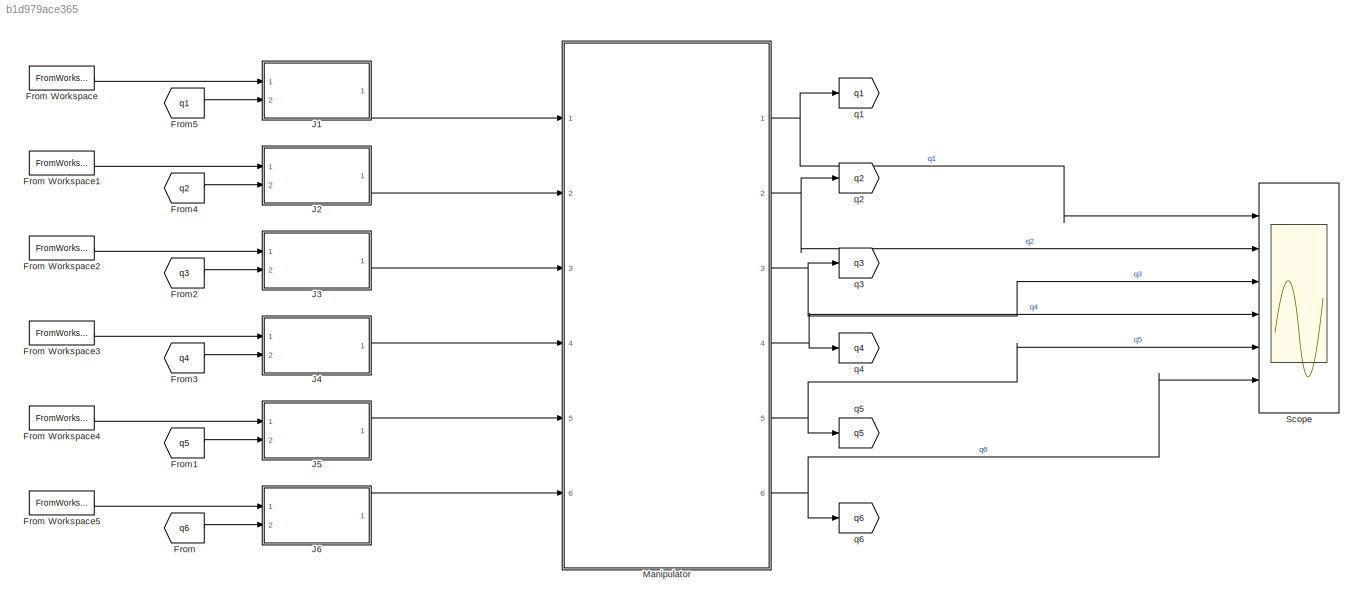
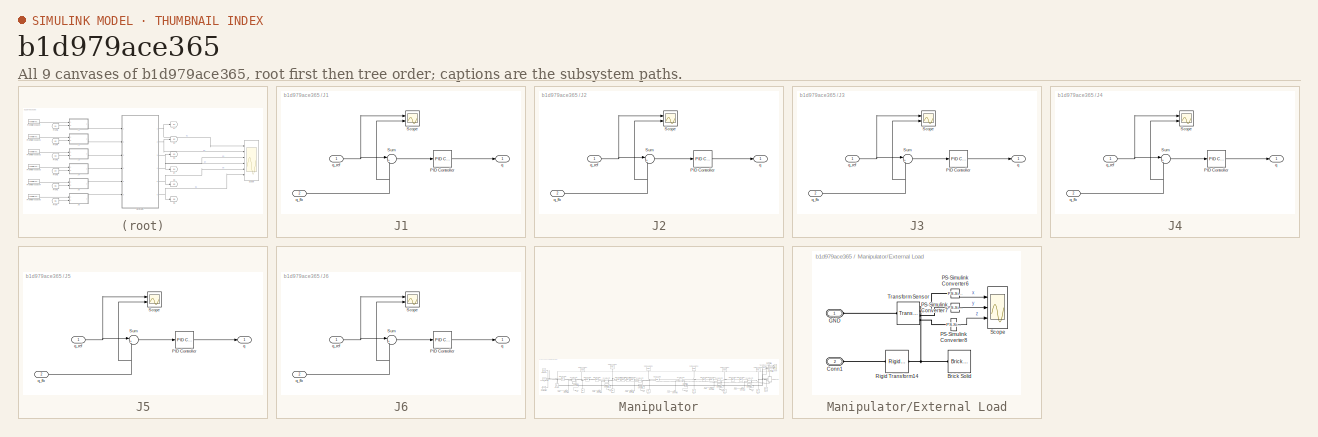
[diagram: thumbnail index - all 9 canvases of the model, root first then tree order]
MODEL slx_b1d979ace365
KIND model
CONFIG AbsTol = auto
CONFIG EnableMultiTasking = off
CONFIG FixedStep = 0.001
CONFIG MaxStep = auto
CONFIG MinStep = auto
CONFIG RelTol = 1e-3
CONFIG SampleTimeConstraint = Unconstrained
CONFIG SolverName = VariableStepAuto
CONFIG StartTime = 0.0
CONFIG StopTime = 5
BLOCK [From] From
  GotoTag = q6
BLOCK [FromWorkspace] From Workspace
  VariableName = q1dsim
BLOCK [FromWorkspace] From Workspace1
  VariableName = q2dsim
BLOCK [FromWorkspace] From Workspace2
  VariableName = q3dsim
BLOCK [FromWorkspace] From Workspace3
  VariableName = q4dsim
BLOCK [FromWorkspace] From Workspace4
  VariableName = q5dsim
BLOCK [FromWorkspace] From Workspace5
  VariableName = q6dsim
BLOCK [From] From1
  GotoTag = q5
BLOCK [From] From2
  GotoTag = q3
BLOCK [From] From3
  GotoTag = q4
BLOCK [From] From4
  GotoTag = q2
BLOCK [From] From5
  GotoTag = q1
BLOCK [SubSystem] J1
  Ports = [2, 1]
  RequestExecContextInheritance = off
BLOCK [Reference] J1/PID Controller  REF=slpidlib/PID Controller
  Ports = [1, 1]
  SourceBlock = slpidlib/PID Controller
  SourceProductBaseCode = SL
  SourceType = PID 1dof
BLOCK [Scope] J1/Scope
  Floating = off
  NumInputPorts = 2
  Ports = [2]
  ScopeSpecificationString = Simulink.scopes.TimeScopeBlockCfg('CurrentConfiguration', extmgr.ConfigurationSet(extmgr.Configuration('Core','General UI',true),extmgr.Configuration('Core','Source UI',true),extmgr.Configuration('Sources','WiredSimulink',true),extmgr.Configuration('Visuals','Time Domain',true,'SerializedDisplays',{struct('MinYLimReal','1.04209','MaxYLimReal','1.0495','YLabelReal','','MinYLimMag','1.04209','MaxYLi...<+1425ch>
BLOCK [Sum] J1/Sum
  Inputs = |+-
  Ports = [2, 1]
BLOCK [Outport] J1/q
BLOCK [Inport] J1/q_fb
  Port = 2
BLOCK [Inport] J1/q_ref
BLOCK [SubSystem] J2
  Ports = [2, 1]
  RequestExecContextInheritance = off
BLOCK [Reference] J2/PID Controller  REF=slpidlib/PID Controller
  Ports = [1, 1]
  SourceBlock = slpidlib/PID Controller
  SourceProductBaseCode = SL
  SourceType = PID 1dof
BLOCK [Scope] J2/Scope
  Floating = off
  NumInputPorts = 2
  Ports = [2]
  ScopeSpecificationString = Simulink.scopes.TimeScopeBlockCfg('CurrentConfiguration', extmgr.ConfigurationSet(extmgr.Configuration('Core','General UI',true),extmgr.Configuration('Core','Source UI',true),extmgr.Configuration('Sources','WiredSimulink',true),extmgr.Configuration('Visuals','Time Domain',true,'SerializedDisplays',{struct('MinYLimReal','-1.17788','MaxYLimReal','0.13088','YLabelReal','','MinYLimMag','0.00000','MaxY...<+1431ch>
BLOCK [Sum] J2/Sum
  Inputs = |+-
  Ports = [2, 1]
BLOCK [Outport] J2/q
BLOCK [Inport] J2/q_fb
  Port = 2
BLOCK [Inport] J2/q_ref
BLOCK [SubSystem] J3
  Ports = [2, 1]
  RequestExecContextInheritance = off
BLOCK [Reference] J3/PID Controller  REF=slpidlib/PID Controller
  Ports = [1, 1]
  SourceBlock = slpidlib/PID Controller
  SourceProductBaseCode = SL
  SourceType = PID 1dof
BLOCK [Scope] J3/Scope
  Floating = off
  NumInputPorts = 2
  Ports = [2]
  ScopeSpecificationString = Simulink.scopes.TimeScopeBlockCfg('CurrentConfiguration', extmgr.ConfigurationSet(extmgr.Configuration('Core','General UI',true),extmgr.Configuration('Core','Source UI',true),extmgr.Configuration('Sources','WiredSimulink',true),extmgr.Configuration('Visuals','Time Domain',true,'SerializedDisplays',{struct('MinYLimReal','1.03004','MaxYLimReal','1.06881','YLabelReal','','MinYLimMag','1.03004','MaxYL...<+1429ch>
BLOCK [Sum] J3/Sum
  Inputs = |+-
  Ports = [2, 1]
BLOCK [Outport] J3/q
BLOCK [Inport] J3/q_fb
  Port = 2
BLOCK [Inport] J3/q_ref
BLOCK [SubSystem] J4
  Ports = [2, 1]
  RequestExecContextInheritance = off
BLOCK [Reference] J4/PID Controller  REF=slpidlib/PID Controller
  Ports = [1, 1]
  SourceBlock = slpidlib/PID Controller
  SourceProductBaseCode = SL
  SourceType = PID 1dof
BLOCK [Scope] J4/Scope
  Floating = off
  NumInputPorts = 2
  Ports = [2]
  ScopeSpecificationString = Simulink.scopes.TimeScopeBlockCfg('CurrentConfiguration', extmgr.ConfigurationSet(extmgr.Configuration('Core','General UI',true),extmgr.Configuration('Core','Source UI',true),extmgr.Configuration('Sources','WiredSimulink',true),extmgr.Configuration('Visuals','Time Domain',true,'SerializedDisplays',{struct('MinYLimReal','-1.07469','MaxYLimReal','-0.94476','YLabelReal','','MinYLimMag','0.00000','Max...<+1433ch>
BLOCK [Sum] J4/Sum
  Inputs = |+-
  Ports = [2, 1]
BLOCK [Outport] J4/q
BLOCK [Inport] J4/q_fb
  Port = 2
BLOCK [Inport] J4/q_ref
BLOCK [SubSystem] J5
  Ports = [2, 1]
  RequestExecContextInheritance = off
BLOCK [Reference] J5/PID Controller  REF=slpidlib/PID Controller
  Ports = [1, 1]
  SourceBlock = slpidlib/PID Controller
  SourceProductBaseCode = SL
  SourceType = PID 1dof
BLOCK [Scope] J5/Scope
  Floating = off
  NumInputPorts = 2
  Ports = [2]
  ScopeSpecificationString = Simulink.scopes.TimeScopeBlockCfg('CurrentConfiguration', extmgr.ConfigurationSet(extmgr.Configuration('Core','General UI',true),extmgr.Configuration('Core','Source UI',true),extmgr.Configuration('Sources','WiredSimulink',true),extmgr.Configuration('Visuals','Time Domain',true,'SerializedDisplays',{struct('MinYLimReal','1.04201','MaxYLimReal','1.04745','YLabelReal','','MinYLimMag','1.04201','MaxYL...<+1429ch>
BLOCK [Sum] J5/Sum
  Inputs = |+-
  Ports = [2, 1]
BLOCK [Outport] J5/q
BLOCK [Inport] J5/q_fb
  Port = 2
BLOCK [Inport] J5/q_ref
BLOCK [SubSystem] J6
  Ports = [2, 1]
  RequestExecContextInheritance = off
BLOCK [Reference] J6/PID Controller  REF=slpidlib/PID Controller
  Ports = [1, 1]
  SourceBlock = slpidlib/PID Controller
  SourceProductBaseCode = SL
  SourceType = PID 1dof
BLOCK [Scope] J6/Scope
  Floating = off
  NumInputPorts = 2
  Ports = [2]
  ScopeSpecificationString = Simulink.scopes.TimeScopeBlockCfg('CurrentConfiguration', extmgr.ConfigurationSet(extmgr.Configuration('Core','General UI',true),extmgr.Configuration('Core','Source UI',true),extmgr.Configuration('Sources','WiredSimulink',true),extmgr.Configuration('Visuals','Time Domain',true,'SerializedDisplays',{struct('MinYLimReal','-0.13088','MaxYLimReal','1.17788','YLabelReal','','MinYLimMag','0.00000','MaxY...<+1431ch>
BLOCK [Sum] J6/Sum
  Inputs = |+-
  Ports = [2, 1]
BLOCK [Outport] J6/q
BLOCK [Inport] J6/q_fb
  Port = 2
BLOCK [Inport] J6/q_ref
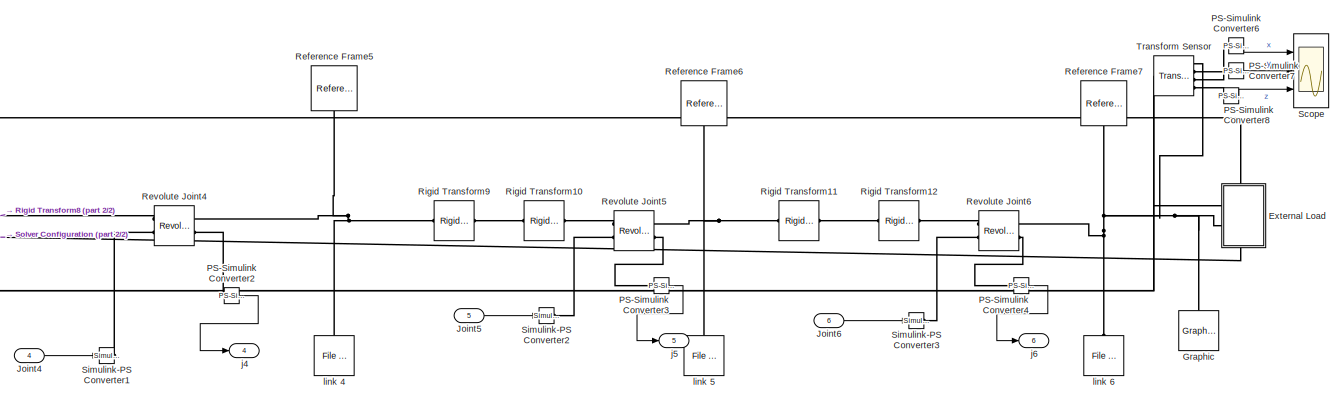
[diagram: Manipulator - part 1/2, right side, full height]
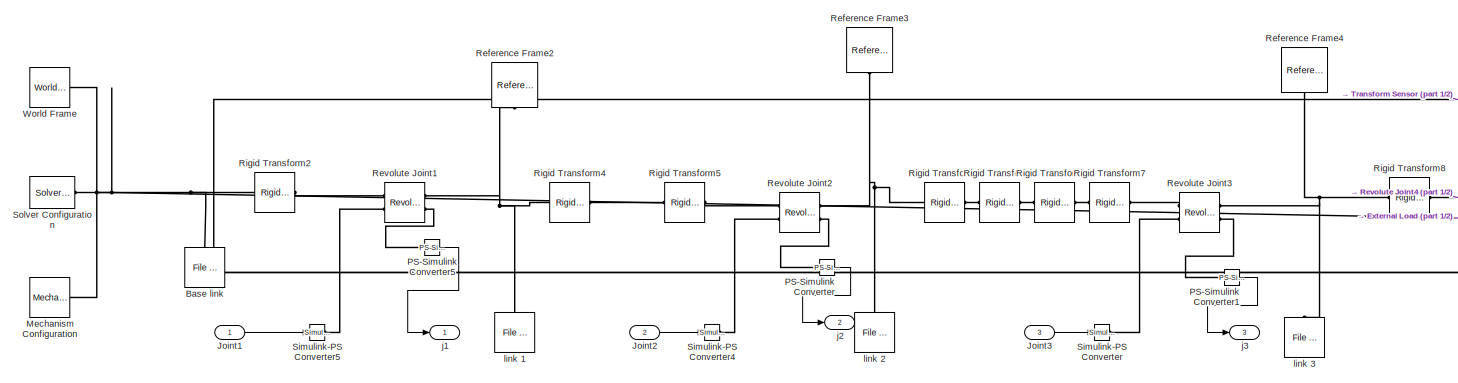
[diagram: Manipulator - part 2/2, left side, full height]
BLOCK [SubSystem] Manipulator
  Ports = [6, 6]
  RequestExecContextInheritance = off
BLOCK [Reference] Manipulator/Base link  REF=sm_lib/Body Elements/File Solid
  NameLocation = right
  Ports = [0, 0, 0, 0, 0, 0, 1]
  SourceBlock = sm_lib/Body Elements/File Solid
  SourceProductBaseCode = MS
  SourceType = File Solid
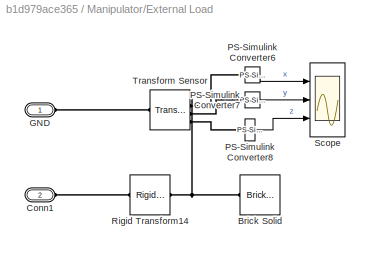
BLOCK [SubSystem] Manipulator/External Load
  Ports = [0, 0, 0, 0, 0, 2]
  RequestExecContextInheritance = off
BLOCK [Reference] Manipulator/External Load/Brick Solid  REF=sm_lib/Body Elements/Brick Solid
  NameLocation = top
  Ports = [0, 0, 0, 0, 0, 0, 1]
  SourceBlock = sm_lib/Body Elements/Brick Solid
  SourceProductBaseCode = MS
  SourceType = Brick Solid
BLOCK [PMIOPort] Manipulator/External Load/Conn1
  Port = 2
  Side = Left
BLOCK [PMIOPort] Manipulator/External Load/GND
  Side = Left
BLOCK [Reference] Manipulator/External Load/PS-Simulink Converter6  REF=nesl_utility/PS-Simulink
Converter
  Ports = [0, 1, 0, 0, 0, 1]
  SourceBlock = nesl_utility/PS-Simulink\nConverter
  SourceProductBaseCode = PW,SS
  SourceType = PS-Simulink\nConverter
BLOCK [Reference] Manipulator/External Load/PS-Simulink Converter7  REF=nesl_utility/PS-Simulink
Converter
  Ports = [0, 1, 0, 0, 0, 1]
  SourceBlock = nesl_utility/PS-Simulink\nConverter
  SourceProductBaseCode = PW,SS
  SourceType = PS-Simulink\nConverter
BLOCK [Reference] Manipulator/External Load/PS-Simulink Converter8  REF=nesl_utility/PS-Simulink
Converter
  Ports = [0, 1, 0, 0, 0, 1]
  SourceBlock = nesl_utility/PS-Simulink\nConverter
  SourceProductBaseCode = PW,SS
  SourceType = PS-Simulink\nConverter
BLOCK [Reference] Manipulator/External Load/Rigid Transform14  REF=sm_lib/Frames and
Transforms/Rigid
Transform
  Ports = [0, 0, 0, 0, 0, 1, 1]
  SourceBlock = sm_lib/Frames and\nTransforms/Rigid\nTransform
  SourceProductBaseCode = MS
  SourceType = Rigid\nTransform
BLOCK [Scope] Manipulator/External Load/Scope
  Floating = off
  NumInputPorts = 3
  Ports = [3]
  ScopeSpecificationString = Simulink.scopes.TimeScopeBlockCfg('CurrentConfiguration', extmgr.ConfigurationSet(extmgr.Configuration('Core','General UI',true),extmgr.Configuration('Core','Source UI',true),extmgr.Configuration('Sources','WiredSimulink',true,'DataLoggingVariableName','ScopeData3'),extmgr.Configuration('Visuals','Time Domain',true,'SerializedDisplays',{struct('MinYLimReal','-0.65746','MaxYLimReal','0.91685','YLab...<+1758ch>
BLOCK [Reference] Manipulator/External Load/Transform Sensor  REF=sm_lib/Frames and
Transforms/Transform
Sensor
  Ports = [0, 0, 0, 0, 0, 1, 4]
  SourceBlock = sm_lib/Frames and\nTransforms/Transform\nSensor
  SourceProductBaseCode = MS
  SourceType = Transform\nSensor
BLOCK [Reference] Manipulator/Graphic  REF=sm_lib/Body Elements/Graphic
  NameLocation = right
  Ports = [0, 0, 0, 0, 0, 0, 1]
  SourceBlock = sm_lib/Body Elements/Graphic
  SourceProductBaseCode = MS
  SourceType = Graphic
BLOCK [Inport] Manipulator/Joint1
BLOCK [Inport] Manipulator/Joint2
  Port = 2
BLOCK [Inport] Manipulator/Joint3
  Port = 3
BLOCK [Inport] Manipulator/Joint4
  Port = 4
BLOCK [Inport] Manipulator/Joint5
  Port = 5
BLOCK [Inport] Manipulator/Joint6
  Port = 6
BLOCK [Reference] Manipulator/Mechanism Configuration  REF=sm_lib/Utilities/Mechanism
Configuration
  Ports = [0, 0, 0, 0, 0, 0, 1]
  SourceBlock = sm_lib/Utilities/Mechanism\nConfiguration
  SourceProductBaseCode = MS
  SourceType = Mechanism\nConfiguration
BLOCK [Reference] Manipulator/PS-Simulink Converter  REF=nesl_utility/PS-Simulink
Converter
  Ports = [0, 1, 0, 0, 0, 1]
  SourceBlock = nesl_utility/PS-Simulink\nConverter
  SourceProductBaseCode = PW,SS
  SourceType = PS-Simulink\nConverter
BLOCK [Reference] Manipulator/PS-Simulink Converter1  REF=nesl_utility/PS-Simulink
Converter
  Ports = [0, 1, 0, 0, 0, 1]
  SourceBlock = nesl_utility/PS-Simulink\nConverter
  SourceProductBaseCode = PW,SS
  SourceType = PS-Simulink\nConverter
BLOCK [Reference] Manipulator/PS-Simulink Converter2  REF=nesl_utility/PS-Simulink
Converter
  Ports = [0, 1, 0, 0, 0, 1]
  SourceBlock = nesl_utility/PS-Simulink\nConverter
  SourceProductBaseCode = PW,SS
  SourceType = PS-Simulink\nConverter
BLOCK [Reference] Manipulator/PS-Simulink Converter3  REF=nesl_utility/PS-Simulink
Converter
  Ports = [0, 1, 0, 0, 0, 1]
  SourceBlock = nesl_utility/PS-Simulink\nConverter
  SourceProductBaseCode = PW,SS
  SourceType = PS-Simulink\nConverter
BLOCK [Reference] Manipulator/PS-Simulink Converter4  REF=nesl_utility/PS-Simulink
Converter
  Ports = [0, 1, 0, 0, 0, 1]
  SourceBlock = nesl_utility/PS-Simulink\nConverter
  SourceProductBaseCode = PW,SS
  SourceType = PS-Simulink\nConverter
BLOCK [Reference] Manipulator/PS-Simulink Converter5  REF=nesl_utility/PS-Simulink
Converter
  Ports = [0, 1, 0, 0, 0, 1]
  SourceBlock = nesl_utility/PS-Simulink\nConverter
  SourceProductBaseCode = PW,SS
  SourceType = PS-Simulink\nConverter
BLOCK [Reference] Manipulator/PS-Simulink Converter6  REF=nesl_utility/PS-Simulink
Converter
  Ports = [0, 1, 0, 0, 0, 1]
  SourceBlock = nesl_utility/PS-Simulink\nConverter
  SourceProductBaseCode = PW,SS
  SourceType = PS-Simulink\nConverter
BLOCK [Reference] Manipulator/PS-Simulink Converter7  REF=nesl_utility/PS-Simulink
Converter
  Ports = [0, 1, 0, 0, 0, 1]
  SourceBlock = nesl_utility/PS-Simulink\nConverter
  SourceProductBaseCode = PW,SS
  SourceType = PS-Simulink\nConverter
BLOCK [Reference] Manipulator/PS-Simulink Converter8  REF=nesl_utility/PS-Simulink
Converter
  Ports = [0, 1, 0, 0, 0, 1]
  SourceBlock = nesl_utility/PS-Simulink\nConverter
  SourceProductBaseCode = PW,SS
  SourceType = PS-Simulink\nConverter
BLOCK [Reference] Manipulator/Reference Frame2  REF=sm_lib/Frames and
Transforms/Reference
Frame
  NameLocation = left
  Ports = [0, 0, 0, 0, 0, 0, 1]
  SourceBlock = sm_lib/Frames and\nTransforms/Reference\nFrame
  SourceProductBaseCode = MS
  SourceType = Reference\nFrame
BLOCK [Reference] Manipulator/Reference Frame3  REF=sm_lib/Frames and
Transforms/Reference
Frame
  NameLocation = left
  Ports = [0, 0, 0, 0, 0, 0, 1]
  SourceBlock = sm_lib/Frames and\nTransforms/Reference\nFrame
  SourceProductBaseCode = MS
  SourceType = Reference\nFrame
BLOCK [Reference] Manipulator/Reference Frame4  REF=sm_lib/Frames and
Transforms/Reference
Frame
  NameLocation = left
  Ports = [0, 0, 0, 0, 0, 0, 1]
  SourceBlock = sm_lib/Frames and\nTransforms/Reference\nFrame
  SourceProductBaseCode = MS
  SourceType = Reference\nFrame
BLOCK [Reference] Manipulator/Reference Frame5  REF=sm_lib/Frames and
Transforms/Reference
Frame
  NameLocation = left
  Ports = [0, 0, 0, 0, 0, 0, 1]
  SourceBlock = sm_lib/Frames and\nTransforms/Reference\nFrame
  SourceProductBaseCode = MS
  SourceType = Reference\nFrame
BLOCK [Reference] Manipulator/Reference Frame6  REF=sm_lib/Frames and
Transforms/Reference
Frame
  NameLocation = left
  Ports = [0, 0, 0, 0, 0, 0, 1]
  SourceBlock = sm_lib/Frames and\nTransforms/Reference\nFrame
  SourceProductBaseCode = MS
  SourceType = Reference\nFrame
BLOCK [Reference] Manipulator/Reference Frame7  REF=sm_lib/Frames and
Transforms/Reference
Frame
  NameLocation = left
  Ports = [0, 0, 0, 0, 0, 0, 1]
  SourceBlock = sm_lib/Frames and\nTransforms/Reference\nFrame
  SourceProductBaseCode = MS
  SourceType = Reference\nFrame
BLOCK [Reference] Manipulator/Revolute Joint1  REF=sm_lib/Joints/Revolute Joint
  Ports = [0, 0, 0, 0, 0, 2, 2]
  SourceBlock = sm_lib/Joints/Revolute Joint
  SourceProductBaseCode = MS
  SourceType = Revolute Joint
BLOCK [Reference] Manipulator/Revolute Joint2  REF=sm_lib/Joints/Revolute Joint
  Ports = [0, 0, 0, 0, 0, 2, 2]
  SourceBlock = sm_lib/Joints/Revolute Joint
  SourceProductBaseCode = MS
  SourceType = Revolute Joint
BLOCK [Reference] Manipulator/Revolute Joint3  REF=sm_lib/Joints/Revolute Joint
  Ports = [0, 0, 0, 0, 0, 2, 2]
  SourceBlock = sm_lib/Joints/Revolute Joint
  SourceProductBaseCode = MS
  SourceType = Revolute Joint
BLOCK [Reference] Manipulator/Revolute Joint4  REF=sm_lib/Joints/Revolute Joint
  Ports = [0, 0, 0, 0, 0, 2, 2]
  SourceBlock = sm_lib/Joints/Revolute Joint
  SourceProductBaseCode = MS
  SourceType = Revolute Joint
BLOCK [Reference] Manipulator/Revolute Joint5  REF=sm_lib/Joints/Revolute Joint
  Ports = [0, 0, 0, 0, 0, 2, 2]
  SourceBlock = sm_lib/Joints/Revolute Joint
  SourceProductBaseCode = MS
  SourceType = Revolute Joint
BLOCK [Reference] Manipulator/Revolute Joint6  REF=sm_lib/Joints/Revolute Joint
  Ports = [0, 0, 0, 0, 0, 2, 2]
  SourceBlock = sm_lib/Joints/Revolute Joint
  SourceProductBaseCode = MS
  SourceType = Revolute Joint
BLOCK [Reference] Manipulator/Rigid Transform10  REF=sm_lib/Frames and
Transforms/Rigid
Transform
  Ports = [0, 0, 0, 0, 0, 1, 1]
  SourceBlock = sm_lib/Frames and\nTransforms/Rigid\nTransform
  SourceProductBaseCode = MS
  SourceType = Rigid\nTransform
BLOCK [Reference] Manipulator/Rigid Transform11  REF=sm_lib/Frames and
Transforms/Rigid
Transform
  Ports = [0, 0, 0, 0, 0, 1, 1]
  SourceBlock = sm_lib/Frames and\nTransforms/Rigid\nTransform
  SourceProductBaseCode = MS
  SourceType = Rigid\nTransform
BLOCK [Reference] Manipulator/Rigid Transform12  REF=sm_lib/Frames and
Transforms/Rigid
Transform
  Ports = [0, 0, 0, 0, 0, 1, 1]
  SourceBlock = sm_lib/Frames and\nTransforms/Rigid\nTransform
  SourceProductBaseCode = MS
  SourceType = Rigid\nTransform
BLOCK [Reference] Manipulator/Rigid Transform13  REF=sm_lib/Frames and
Transforms/Rigid
Transform
  Ports = [0, 0, 0, 0, 0, 1, 1]
  SourceBlock = sm_lib/Frames and\nTransforms/Rigid\nTransform
  SourceProductBaseCode = MS
  SourceType = Rigid\nTransform
BLOCK [Reference] Manipulator/Rigid Transform2  REF=sm_lib/Frames and
Transforms/Rigid
Transform
  Ports = [0, 0, 0, 0, 0, 1, 1]
  SourceBlock = sm_lib/Frames and\nTransforms/Rigid\nTransform
  SourceProductBaseCode = MS
  SourceType = Rigid\nTransform
BLOCK [Reference] Manipulator/Rigid Transform3  REF=sm_lib/Frames and
Transforms/Rigid
Transform
  Ports = [0, 0, 0, 0, 0, 1, 1]
  SourceBlock = sm_lib/Frames and\nTransforms/Rigid\nTransform
  SourceProductBaseCode = MS
  SourceType = Rigid\nTransform
BLOCK [Reference] Manipulator/Rigid Transform4  REF=sm_lib/Frames and
Transforms/Rigid
Transform
  Ports = [0, 0, 0, 0, 0, 1, 1]
  SourceBlock = sm_lib/Frames and\nTransforms/Rigid\nTransform
  SourceProductBaseCode = MS
  SourceType = Rigid\nTransform
BLOCK [Reference] Manipulator/Rigid Transform5  REF=sm_lib/Frames and
Transforms/Rigid
Transform
  Ports = [0, 0, 0, 0, 0, 1, 1]
  SourceBlock = sm_lib/Frames and\nTransforms/Rigid\nTransform
  SourceProductBaseCode = MS
  SourceType = Rigid\nTransform
BLOCK [Reference] Manipulator/Rigid Transform6  REF=sm_lib/Frames and
Transforms/Rigid
Transform
  Ports = [0, 0, 0, 0, 0, 1, 1]
  SourceBlock = sm_lib/Frames and\nTransforms/Rigid\nTransform
  SourceProductBaseCode = MS
  SourceType = Rigid\nTransform
BLOCK [Reference] Manipulator/Rigid Transform7  REF=sm_lib/Frames and
Transforms/Rigid
Transform
  Ports = [0, 0, 0, 0, 0, 1, 1]
  SourceBlock = sm_lib/Frames and\nTransforms/Rigid\nTransform
  SourceProductBaseCode = MS
  SourceType = Rigid\nTransform
BLOCK [Reference] Manipulator/Rigid Transform8  REF=sm_lib/Frames and
Transforms/Rigid
Transform
  Ports = [0, 0, 0, 0, 0, 1, 1]
  SourceBlock = sm_lib/Frames and\nTransforms/Rigid\nTransform
  SourceProductBaseCode = MS
  SourceType = Rigid\nTransform
BLOCK [Reference] Manipulator/Rigid Transform9  REF=sm_lib/Frames and
Transforms/Rigid
Transform
  Ports = [0, 0, 0, 0, 0, 1, 1]
  SourceBlock = sm_lib/Frames and\nTransforms/Rigid\nTransform
  SourceProductBaseCode = MS
  SourceType = Rigid\nTransform
BLOCK [Scope] Manipulator/Scope
  Floating = off
  NumInputPorts = 3
  Ports = [3]
  ScopeSpecificationString = Simulink.scopes.TimeScopeBlockCfg('CurrentConfiguration', extmgr.ConfigurationSet(extmgr.Configuration('Core','General UI',true),extmgr.Configuration('Core','Source UI',true),extmgr.Configuration('Sources','WiredSimulink',true,'DataLoggingVariableName','ScopeData2'),extmgr.Configuration('Visuals','Time Domain',true,'SerializedDisplays',{struct('MinYLimReal','-0.62926','MaxYLimReal','0.87008','YLab...<+1784ch>
BLOCK [Reference] Manipulator/Simulink-PS Converter  REF=nesl_utility/Simulink-PS
Converter
  Ports = [1, 0, 0, 0, 0, 0, 1]
  SourceBlock = nesl_utility/Simulink-PS\nConverter
  SourceProductBaseCode = PW,SS
  SourceType = Simulink-PS\nConverter
BLOCK [Reference] Manipulator/Simulink-PS Converter1  REF=nesl_utility/Simulink-PS
Converter
  Ports = [1, 0, 0, 0, 0, 0, 1]
  SourceBlock = nesl_utility/Simulink-PS\nConverter
  SourceProductBaseCode = PW,SS
  SourceType = Simulink-PS\nConverter
BLOCK [Reference] Manipulator/Simulink-PS Converter2  REF=nesl_utility/Simulink-PS
Converter
  Ports = [1, 0, 0, 0, 0, 0, 1]
  SourceBlock = nesl_utility/Simulink-PS\nConverter
  SourceProductBaseCode = PW,SS
  SourceType = Simulink-PS\nConverter
BLOCK [Reference] Manipulator/Simulink-PS Converter3  REF=nesl_utility/Simulink-PS
Converter
  Ports = [1, 0, 0, 0, 0, 0, 1]
  SourceBlock = nesl_utility/Simulink-PS\nConverter
  SourceProductBaseCode = PW,SS
  SourceType = Simulink-PS\nConverter
BLOCK [Reference] Manipulator/Simulink-PS Converter4  REF=nesl_utility/Simulink-PS
Converter
  Ports = [1, 0, 0, 0, 0, 0, 1]
  SourceBlock = nesl_utility/Simulink-PS\nConverter
  SourceProductBaseCode = PW,SS
  SourceType = Simulink-PS\nConverter
BLOCK [Reference] Manipulator/Simulink-PS Converter5  REF=nesl_utility/Simulink-PS
Converter
  Ports = [1, 0, 0, 0, 0, 0, 1]
  SourceBlock = nesl_utility/Simulink-PS\nConverter
  SourceProductBaseCode = PW,SS
  SourceType = Simulink-PS\nConverter
BLOCK [Reference] Manipulator/Solver Configuration  REF=nesl_utility/Solver
Configuration
  Ports = [0, 0, 0, 0, 0, 0, 1]
  SourceBlock = nesl_utility/Solver\nConfiguration
  SourceProductBaseCode = PW,SS
  SourceType = Solver\nConfiguration
BLOCK [Reference] Manipulator/Transform Sensor  REF=sm_lib/Frames and
Transforms/Transform
Sensor
  Ports = [0, 0, 0, 0, 0, 1, 4]
  SourceBlock = sm_lib/Frames and\nTransforms/Transform\nSensor
  SourceProductBaseCode = MS
  SourceType = Transform\nSensor
BLOCK [Reference] Manipulator/World Frame  REF=sm_lib/Frames and
Transforms/World Frame
  Ports = [0, 0, 0, 0, 0, 0, 1]
  SourceBlock = sm_lib/Frames and\nTransforms/World Frame
  SourceProductBaseCode = MS
  SourceType = World Frame
BLOCK [Outport] Manipulator/j1
BLOCK [Outport] Manipulator/j2
  Port = 2
BLOCK [Outport] Manipulator/j3
  Port = 3
BLOCK [Outport] Manipulator/j4
  Port = 4
BLOCK [Outport] Manipulator/j5
  Port = 5
BLOCK [Outport] Manipulator/j6
  Port = 6
BLOCK [Reference] Manipulator/link 1  REF=sm_lib/Body Elements/File Solid
  NameLocation = right
  Ports = [0, 0, 0, 0, 0, 0, 1]
  SourceBlock = sm_lib/Body Elements/File Solid
  SourceProductBaseCode = MS
  SourceType = File Solid
BLOCK [Reference] Manipulator/link 2  REF=sm_lib/Body Elements/File Solid
  NameLocation = right
  Ports = [0, 0, 0, 0, 0, 0, 1]
  SourceBlock = sm_lib/Body Elements/File Solid
  SourceProductBaseCode = MS
  SourceType = File Solid
BLOCK [Reference] Manipulator/link 3  REF=sm_lib/Body Elements/File Solid
  NameLocation = right
  Ports = [0, 0, 0, 0, 0, 0, 1]
  SourceBlock = sm_lib/Body Elements/File Solid
  SourceProductBaseCode = MS
  SourceType = File Solid
BLOCK [Reference] Manipulator/link 4  REF=sm_lib/Body Elements/File Solid
  NameLocation = right
  Ports = [0, 0, 0, 0, 0, 0, 1]
  SourceBlock = sm_lib/Body Elements/File Solid
  SourceProductBaseCode = MS
  SourceType = File Solid
BLOCK [Reference] Manipulator/link 5  REF=sm_lib/Body Elements/File Solid
  NameLocation = right
  Ports = [0, 0, 0, 0, 0, 0, 1]
  SourceBlock = sm_lib/Body Elements/File Solid
  SourceProductBaseCode = MS
  SourceType = File Solid
BLOCK [Reference] Manipulator/link 6  REF=sm_lib/Body Elements/File Solid
  NameLocation = right
  Ports = [0, 0, 0, 0, 0, 0, 1]
  SourceBlock = sm_lib/Body Elements/File Solid
  SourceProductBaseCode = MS
  SourceType = File Solid
BLOCK [Scope] Scope
  Floating = off
  NumInputPorts = 6
  Ports = [6]
  ScopeSpecificationString = Simulink.scopes.TimeScopeBlockCfg('CurrentConfiguration', extmgr.ConfigurationSet(extmgr.Configuration('Core','General UI',true),extmgr.Configuration('Core','Source UI',true),extmgr.Configuration('Sources','WiredSimulink',true,'DataLoggingVariableName','ScopeData1'),extmgr.Configuration('Visuals','Time Domain',true,'SerializedDisplays',{struct('MinYLimReal','-1.84167','MaxYLimReal','3.40262','YLab...<+1440ch>
BLOCK [Goto] q1
  GotoTag = q1
BLOCK [Goto] q2
  GotoTag = q2
BLOCK [Goto] q3
  GotoTag = q3
BLOCK [Goto] q4
  GotoTag = q4
BLOCK [Goto] q5
  GotoTag = q5
BLOCK [Goto] q6
  GotoTag = q6
LINE From Workspace1:1 -> J2:1
LINE From Workspace2:1 -> J3:1
LINE From Workspace3:1 -> J4:1
LINE From Workspace4:1 -> J5:1
LINE From Workspace5:1 -> J6:1
LINE From Workspace:1 -> J1:1
LINE From1:1 -> J5:2
LINE From2:1 -> J3:2
LINE From3:1 -> J4:2
LINE From4:1 -> J2:2
LINE From5:1 -> J1:2
LINE From:1 -> J6:2
LINE J1/PID Controller:1 -> J1/q:1
LINE J1/Sum:1 -> J1/PID Controller:1
NET J1/q_fb:1 -> J1/Scope:2, J1/Sum:2
NET J1/q_ref:1 -> J1/Scope:1, J1/Sum:1
LINE J1:1 -> Manipulator:1
LINE J2/PID Controller:1 -> J2/q:1
LINE J2/Sum:1 -> J2/PID Controller:1
NET J2/q_fb:1 -> J2/Scope:2, J2/Sum:2
NET J2/q_ref:1 -> J2/Scope:1, J2/Sum:1
LINE J2:1 -> Manipulator:2
LINE J3/PID Controller:1 -> J3/q:1
LINE J3/Sum:1 -> J3/PID Controller:1
NET J3/q_fb:1 -> J3/Scope:2, J3/Sum:2
NET J3/q_ref:1 -> J3/Scope:1, J3/Sum:1
LINE J3:1 -> Manipulator:3
LINE J4/PID Controller:1 -> J4/q:1
LINE J4/Sum:1 -> J4/PID Controller:1
NET J4/q_fb:1 -> J4/Scope:2, J4/Sum:2
NET J4/q_ref:1 -> J4/Scope:1, J4/Sum:1
LINE J4:1 -> Manipulator:4
LINE J5/PID Controller:1 -> J5/q:1
LINE J5/Sum:1 -> J5/PID Controller:1
NET J5/q_fb:1 -> J5/Scope:2, J5/Sum:2
NET J5/q_ref:1 -> J5/Scope:1, J5/Sum:1
LINE J5:1 -> Manipulator:5
LINE J6/PID Controller:1 -> J6/q:1
LINE J6/Sum:1 -> J6/PID Controller:1
NET J6/q_fb:1 -> J6/Scope:2, J6/Sum:2
NET J6/q_ref:1 -> J6/Scope:1, J6/Sum:1
LINE J6:1 -> Manipulator:6
LINE Manipulator/External Load/PS-Simulink Converter6:1 -> Manipulator/External Load/Scope:1
LINE Manipulator/External Load/PS-Simulink Converter7:1 -> Manipulator/External Load/Scope:2
LINE Manipulator/External Load/PS-Simulink Converter8:1 -> Manipulator/External Load/Scope:3
LINE Manipulator/Joint1:1 -> Manipulator/Simulink-PS Converter5:1
LINE Manipulator/Joint2:1 -> Manipulator/Simulink-PS Converter4:1
LINE Manipulator/Joint3:1 -> Manipulator/Simulink-PS Converter:1
LINE Manipulator/Joint4:1 -> Manipulator/Simulink-PS Converter1:1
LINE Manipulator/Joint5:1 -> Manipulator/Simulink-PS Converter2:1
LINE Manipulator/Joint6:1 -> Manipulator/Simulink-PS Converter3:1
LINE Manipulator/PS-Simulink Converter1:1 -> Manipulator/j3:1
LINE Manipulator/PS-Simulink Converter2:1 -> Manipulator/j4:1
LINE Manipulator/PS-Simulink Converter3:1 -> Manipulator/j5:1
LINE Manipulator/PS-Simulink Converter4:1 -> Manipulator/j6:1
LINE Manipulator/PS-Simulink Converter5:1 -> Manipulator/j1:1
LINE Manipulator/PS-Simulink Converter6:1 -> Manipulator/Scope:1
LINE Manipulator/PS-Simulink Converter7:1 -> Manipulator/Scope:2
LINE Manipulator/PS-Simulink Converter8:1 -> Manipulator/Scope:3
LINE Manipulator/PS-Simulink Converter:1 -> Manipulator/j2:1
NET Manipulator:1 -> Scope:1, q1:1
NET Manipulator:2 -> Scope:2, q2:1
NET Manipulator:3 -> Scope:3, q3:1
NET Manipulator:4 -> Scope:4, q4:1
NET Manipulator:5 -> Scope:5, q5:1
NET Manipulator:6 -> Scope:6, q6:1
PNET net1: Manipulator/Base link:RConn1 -- Manipulator/External Load:LConn1 -- Manipulator/Mechanism Configuration:RConn1 -- Manipulator/Rigid Transform2:LConn1 -- Manipulator/Solver Configuration:RConn1 -- Manipulator/Transform Sensor:LConn1 -- Manipulator/World Frame:RConn1
PNET net2: Manipulator/External Load/Brick Solid:RConn1 -- Manipulator/External Load/Rigid Transform14:RConn1 -- Manipulator/External Load/Transform Sensor:RConn1
PLINE Manipulator/External Load/Conn1:RConn1 -- Manipulator/External Load/Rigid Transform14:LConn1
PLINE Manipulator/External Load/GND:RConn1 -- Manipulator/External Load/Transform Sensor:LConn1
PLINE Manipulator/External Load/PS-Simulink Converter6:LConn1 -- Manipulator/External Load/Transform Sensor:RConn2
PLINE Manipulator/External Load/PS-Simulink Converter7:LConn1 -- Manipulator/External Load/Transform Sensor:RConn3
PLINE Manipulator/External Load/PS-Simulink Converter8:LConn1 -- Manipulator/External Load/Transform Sensor:RConn4
PNET net3: Manipulator/External Load:LConn2 -- Manipulator/Graphic:RConn1 -- Manipulator/Reference Frame7:RConn1 -- Manipulator/Revolute Joint6:RConn1 -- Manipulator/Transform Sensor:RConn1 -- Manipulator/link 6:RConn1
PLINE Manipulator/PS-Simulink Converter1:LConn1 -- Manipulator/Revolute Joint3:RConn2
PLINE Manipulator/PS-Simulink Converter2:LConn1 -- Manipulator/Revolute Joint4:RConn2
PLINE Manipulator/PS-Simulink Converter3:LConn1 -- Manipulator/Revolute Joint5:RConn2
PLINE Manipulator/PS-Simulink Converter4:LConn1 -- Manipulator/Revolute Joint6:RConn2
PLINE Manipulator/PS-Simulink Converter5:LConn1 -- Manipulator/Revolute Joint1:RConn2
PLINE Manipulator/PS-Simulink Converter6:LConn1 -- Manipulator/Transform Sensor:RConn2
PLINE Manipulator/PS-Simulink Converter7:LConn1 -- Manipulator/Transform Sensor:RConn3
PLINE Manipulator/PS-Simulink Converter8:LConn1 -- Manipulator/Transform Sensor:RConn4
PLINE Manipulator/PS-Simulink Converter:LConn1 -- Manipulator/Revolute Joint2:RConn2
PNET net4: Manipulator/Reference Frame2:RConn1 -- Manipulator/Revolute Joint1:RConn1 -- Manipulator/Rigid Transform4:LConn1 -- Manipulator/link 1:RConn1
PNET net5: Manipulator/Reference Frame3:RConn1 -- Manipulator/Revolute Joint2:RConn1 -- Manipulator/Rigid Transform3:LConn1 -- Manipulator/link 2:RConn1
PNET net6: Manipulator/Reference Frame4:RConn1 -- Manipulator/Revolute Joint3:RConn1 -- Manipulator/Rigid Transform8:LConn1 -- Manipulator/link 3:RConn1
PNET net7: Manipulator/Reference Frame5:RConn1 -- Manipulator/Revolute Joint4:RConn1 -- Manipulator/Rigid Transform9:LConn1 -- Manipulator/link 4:RConn1
PNET net8: Manipulator/Reference Frame6:RConn1 -- Manipulator/Revolute Joint5:RConn1 -- Manipulator/Rigid Transform11:LConn1 -- Manipulator/link 5:RConn1
PLINE Manipulator/Revolute Joint1:LConn1 -- Manipulator/Rigid Transform2:RConn1
PLINE Manipulator/Revolute Joint1:LConn2 -- Manipulator/Simulink-PS Converter5:RConn1
PLINE Manipulator/Revolute Joint2:LConn1 -- Manipulator/Rigid Transform5:RConn1
PLINE Manipulator/Revolute Joint2:LConn2 -- Manipulator/Simulink-PS Converter4:RConn1
PLINE Manipulator/Revolute Joint3:LConn1 -- Manipulator/Rigid Transform7:RConn1
PLINE Manipulator/Revolute Joint3:LConn2 -- Manipulator/Simulink-PS Converter:RConn1
PLINE Manipulator/Revolute Joint4:LConn1 -- Manipulator/Rigid Transform8:RConn1
PLINE Manipulator/Revolute Joint4:LConn2 -- Manipulator/Simulink-PS Converter1:RConn1
PLINE Manipulator/Revolute Joint5:LConn1 -- Manipulator/Rigid Transform10:RConn1
PLINE Manipulator/Revolute Joint5:LConn2 -- Manipulator/Simulink-PS Converter2:RConn1
PLINE Manipulator/Revolute Joint6:LConn1 -- Manipulator/Rigid Transform12:RConn1
PLINE Manipulator/Revolute Joint6:LConn2 -- Manipulator/Simulink-PS Converter3:RConn1
PLINE Manipulator/Rigid Transform10:LConn1 -- Manipulator/Rigid Transform9:RConn1
PLINE Manipulator/Rigid Transform11:RConn1 -- Manipulator/Rigid Transform12:LConn1
PLINE Manipulator/Rigid Transform13:LConn1 -- Manipulator/Rigid Transform6:RConn1
PLINE Manipulator/Rigid Transform13:RConn1 -- Manipulator/Rigid Transform7:LConn1
PLINE Manipulator/Rigid Transform3:RConn1 -- Manipulator/Rigid Transform6:LConn1
PLINE Manipulator/Rigid Transform4:RConn1 -- Manipulator/Rigid Transform5:LConn1
note: NET lines group one-source signal fan-out (src -> all destinations, sorted); 1:1 wires keep LINE; PNET lines group multi-terminal physical nets as a canonical sorted terminal list (undirected conserving connections); 2-terminal nets keep the pairwise PLINE form
